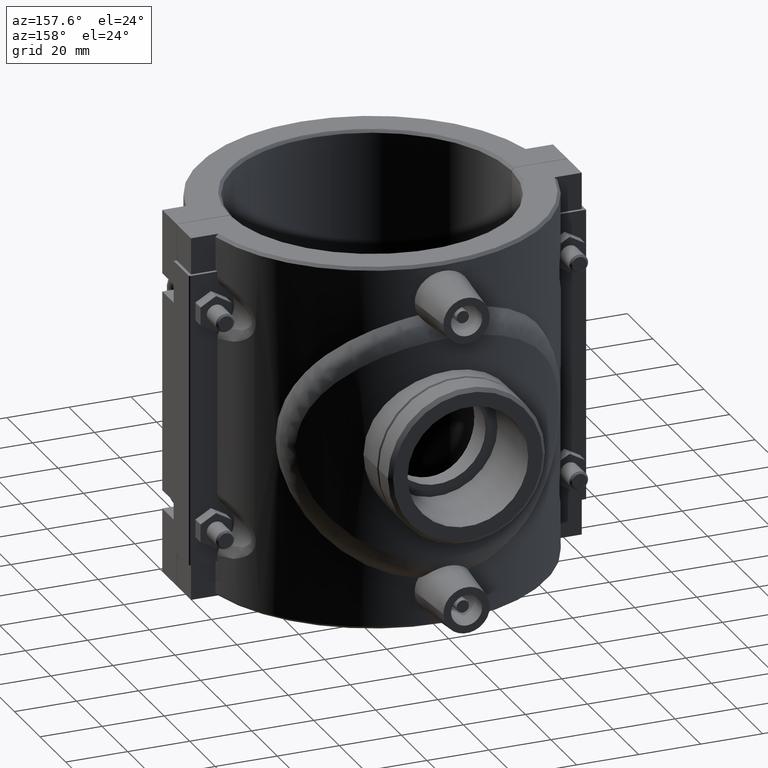
[diagram: clean part render]
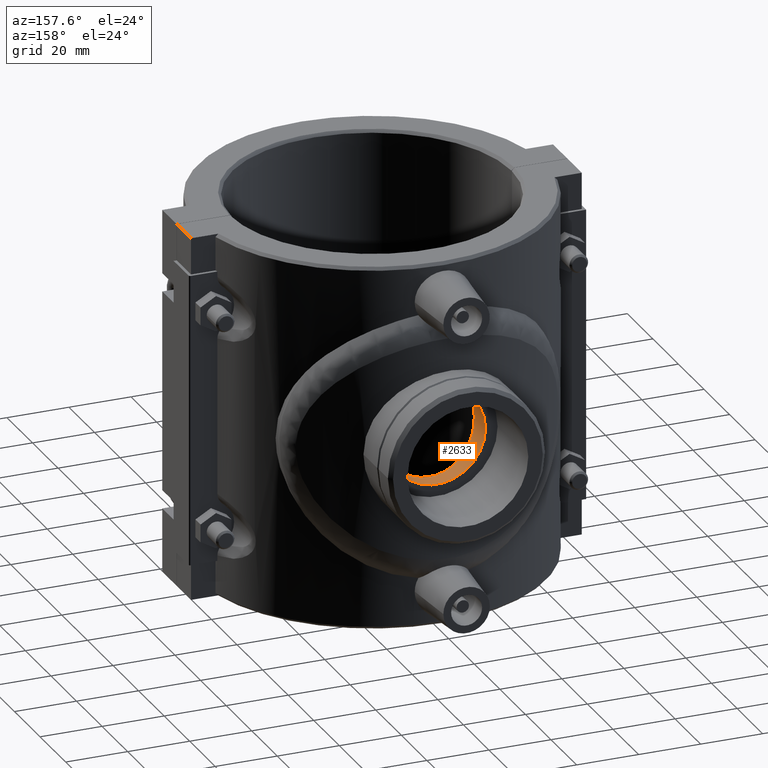
[diagram: same view with one face highlighted and labeled with its STEP entity id]
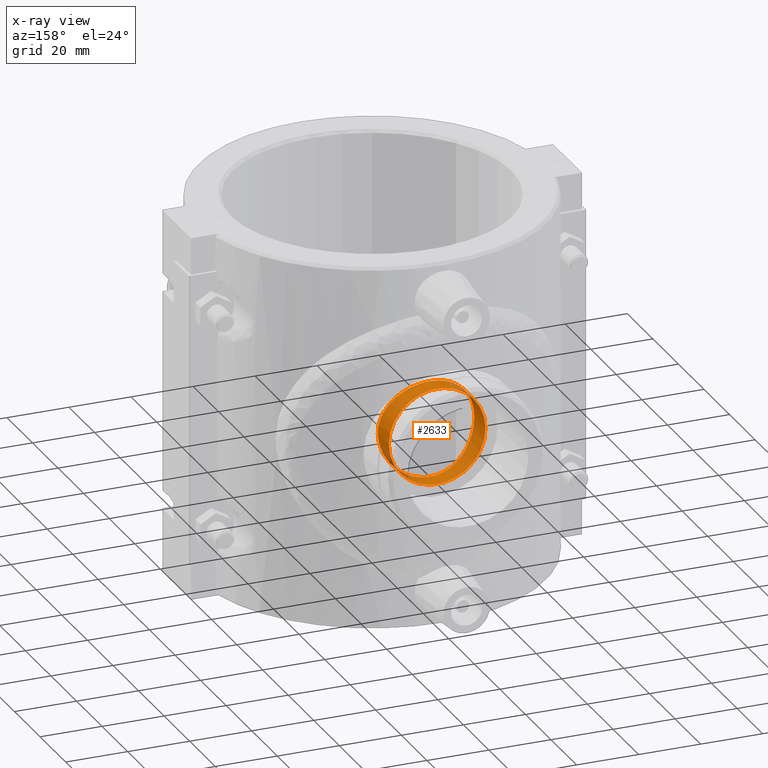
[diagram: x-ray of the same camera — body ghosted, the highlighted face saturated]
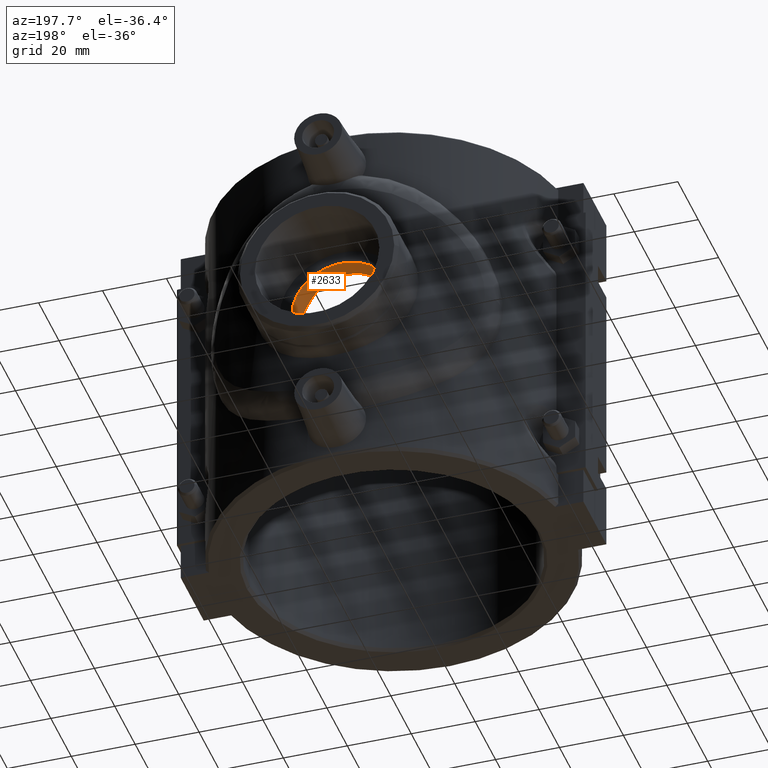
[diagram: same view with one face highlighted and labeled with its STEP entity id]
A machine part, auxiliary view. The second image highlights one B-rep face of the part: STEP entity #2633.
The next image is the same camera in x-ray: the body ghosted, the highlighted face saturated — about 10% of this face is hidden behind the body in this view.
A second angle (auxiliary view) of the same face is appended — the face is thin or edge-on in the first view.
In plain terms, the highlighted cylindrical surface (bore or boss wall) has radius 15.5808 mm, axis along (0, -1, 0).
Its self-contained STEP definition (entity closure, byte-faithful):
#90=CYLINDRICAL_SURFACE('',#2855,15.5808);
#140=FACE_BOUND('',#530,.T.);
#211=B_SPLINE_CURVE_WITH_KNOTS('',3,(#5562,#5563,#5564,#5565,#5566,#5567,
#5568,#5569,#5570,#5571,#5572,#5573,#5574,#5575,#5576,#5577,#5578,#5579,
#5580,#5581,#5582,#5583,#5584,#5585,#5586,#5587,#5588,#5589,#5590,#5591,
#5592,#5593,#5594,#5595,#5596,#5597,#5598,#5599,#5600,#5601,#5602,#5603,
#5604,#5605,#5606,#5607,#5608,#5609,#5610,#5611),.UNSPECIFIED.,.T.,.F.,
(4,2,2,2,2,2,2,2,2,2,2,2,2,2,2,2,2,2,2,2,2,2,2,2,4),(0.,0.296206080676025,
0.59241216135205,1.1848243227041,1.77691376342306,2.07295848378255,2.36900320414203,
2.66504792450151,2.96109264486099,3.55318208557996,4.14559424693201,4.44180032760803,
4.73800640828406,5.03421248896008,5.33041856963611,5.92283073098816,6.51492017170712,
6.81096489206661,7.10700961242609,7.40305433278557,7.69909905314505,8.29118849386402,
8.88360065521607,9.17980673589209,9.47601281656812),.UNSPECIFIED.);
#334=FACE_OUTER_BOUND('',#529,.T.);
#529=EDGE_LOOP('',(#2277));
#530=EDGE_LOOP('',(#2278));
#1051=CIRCLE('',#2856,15.5808);
#1300=VERTEX_POINT('',#5561);
#1301=VERTEX_POINT('',#5612);
#1648=EDGE_CURVE('',#1300,#1300,#211,.T.);
#1649=EDGE_CURVE('',#1301,#1301,#1051,.T.);
#2277=ORIENTED_EDGE('',*,*,#1648,.F.);
#2278=ORIENTED_EDGE('',*,*,#1649,.F.);
#2633=ADVANCED_FACE('',(#334,#140),#90,.F.);
#2855=AXIS2_PLACEMENT_3D('',#5560,#3449,#3450);
#2856=AXIS2_PLACEMENT_3D('',#5613,#3451,#3452);
#3449=DIRECTION('center_axis',(0.,-1.,0.));
#3450=DIRECTION('ref_axis',(-1.,0.,0.));
#3451=DIRECTION('center_axis',(0.,-1.,0.));
#3452=DIRECTION('ref_axis',(-1.,0.,0.));
#5560=CARTESIAN_POINT('Origin',(0.,51.,0.));
#5561=CARTESIAN_POINT('',(15.5808,42.2165686829235,-5.55111512312578E-16));
#5562=CARTESIAN_POINT('Ctrl Pts',(15.5808,42.2165686829235,-5.55111512312578E-16));
#5563=CARTESIAN_POINT('Ctrl Pts',(15.5808,42.2165686829235,-0.987353602253417));
#5564=CARTESIAN_POINT('Ctrl Pts',(15.4854382247723,42.2521722980474,-2.00550791661476));
#5565=CARTESIAN_POINT('Ctrl Pts',(15.0870198818222,42.3960692981046,-4.02525653580114));
#5566=CARTESIAN_POINT('Ctrl Pts',(14.7840809571645,42.5042118271837,-5.0268847901096));
#5567=CARTESIAN_POINT('Ctrl Pts',(13.587953487463,42.9077586816777,-7.90177722814858));
#5568=CARTESIAN_POINT('Ctrl Pts',(12.3918780997661,43.2833840109048,-9.64270057285658));
#5569=CARTESIAN_POINT('Ctrl Pts',(9.64344938961781,43.9773995234646,-12.3911292830049));
#5570=CARTESIAN_POINT('Ctrl Pts',(7.9022303634766,44.3429408071814,-13.5877796847683));
#5571=CARTESIAN_POINT('Ctrl Pts',(5.02650839297296,44.7288455519471,-14.7842301959971));
#5572=CARTESIAN_POINT('Ctrl Pts',(4.02461209477752,44.8310944153143,-15.0871940980722));
#5573=CARTESIAN_POINT('Ctrl Pts',(2.00477962081914,44.9667142190833,-15.4855347644271));
#5574=CARTESIAN_POINT('Ctrl Pts',(0.986815734531607,45.,-15.5808));
#5575=CARTESIAN_POINT('Ctrl Pts',(-0.986815734531609,45.,-15.5808));
#5576=CARTESIAN_POINT('Ctrl Pts',(-2.00477962081914,44.9667142190833,-15.4855347644271));
#5577=CARTESIAN_POINT('Ctrl Pts',(-4.02461209477752,44.8310944153143,-15.0871940980722));
#5578=CARTESIAN_POINT('Ctrl Pts',(-5.02650839297296,44.7288455519471,-14.7842301959971));
#5579=CARTESIAN_POINT('Ctrl Pts',(-7.9022303634766,44.3429408071814,-13.5877796847683));
#5580=CARTESIAN_POINT('Ctrl Pts',(-9.64344938961781,43.9773995234646,-12.3911292830049));
#5581=CARTESIAN_POINT('Ctrl Pts',(-12.3918780997661,43.2833840109048,-9.64270057285658));
#5582=CARTESIAN_POINT('Ctrl Pts',(-13.587953487463,42.9077586816777,-7.90177722814858));
#5583=CARTESIAN_POINT('Ctrl Pts',(-14.7840809571645,42.5042118271837,-5.0268847901096));
#5584=CARTESIAN_POINT('Ctrl Pts',(-15.0870198818222,42.3960692981046,-4.02525653580113));
#5585=CARTESIAN_POINT('Ctrl Pts',(-15.4854382247723,42.2521722980474,-2.00550791661476));
#5586=CARTESIAN_POINT('Ctrl Pts',(-15.5808,42.2165686829235,-0.987353602253416));
#5587=CARTESIAN_POINT('Ctrl Pts',(-15.5808,42.2165686829235,0.987353602253415));
#5588=CARTESIAN_POINT('Ctrl Pts',(-15.4854382247723,42.2521722980474,2.00550791661476));
#5589=CARTESIAN_POINT('Ctrl Pts',(-15.0870198818222,42.3960692981046,4.02525653580114));
#5590=CARTESIAN_POINT('Ctrl Pts',(-14.7840809571644,42.5042118271837,5.0268847901096));
#5591=CARTESIAN_POINT('Ctrl Pts',(-13.587953487463,42.9077586816777,7.90177722814858));
#5592=CARTESIAN_POINT('Ctrl Pts',(-12.3918780997661,43.2833840109048,9.64270057285658));
#5593=CARTESIAN_POINT('Ctrl Pts',(-9.64344938961781,43.9773995234646,12.3911292830049));
#5594=CARTESIAN_POINT('Ctrl Pts',(-7.9022303634766,44.3429408071814,13.5877796847683));
#5595=CARTESIAN_POINT('Ctrl Pts',(-5.02650839297296,44.7288455519471,14.7842301959971));
#5596=CARTESIAN_POINT('Ctrl Pts',(-4.02461209477752,44.8310944153143,15.0871940980722));
#5597=CARTESIAN_POINT('Ctrl Pts',(-2.00477962081914,44.9667142190833,15.4855347644271));
#5598=CARTESIAN_POINT('Ctrl Pts',(-0.986815734531609,45.,15.5808));
#5599=CARTESIAN_POINT('Ctrl Pts',(0.986815734531607,45.,15.5808));
#5600=CARTESIAN_POINT('Ctrl Pts',(2.00477962081914,44.9667142190833,15.4855347644271));
#5601=CARTESIAN_POINT('Ctrl Pts',(4.02461209477752,44.8310944153143,15.0871940980722));
#5602=CARTESIAN_POINT('Ctrl Pts',(5.02650839297296,44.7288455519471,14.7842301959971));
#5603=CARTESIAN_POINT('Ctrl Pts',(7.9022303634766,44.3429408071814,13.5877796847683));
#5604=CARTESIAN_POINT('Ctrl Pts',(9.64344938961781,43.9773995234646,12.3911292830049));
#5605=CARTESIAN_POINT('Ctrl Pts',(12.3918780997661,43.2833840109048,9.64270057285658));
#5606=CARTESIAN_POINT('Ctrl Pts',(13.587953487463,42.9077586816777,7.90177722814858));
#5607=CARTESIAN_POINT('Ctrl Pts',(14.7840809571645,42.5042118271837,5.0268847901096));
#5608=CARTESIAN_POINT('Ctrl Pts',(15.0870198818222,42.3960692981046,4.02525653580113));
#5609=CARTESIAN_POINT('Ctrl Pts',(15.4854382247723,42.2521722980474,2.00550791661475));
#5610=CARTESIAN_POINT('Ctrl Pts',(15.5808,42.2165686829235,0.987353602253413));
#5611=CARTESIAN_POINT('Ctrl Pts',(15.5808,42.2165686829235,0.));
#5612=CARTESIAN_POINT('',(15.5808,51.,-1.90809768481551E-15));
#5613=CARTESIAN_POINT('Origin',(0.,51.,0.));